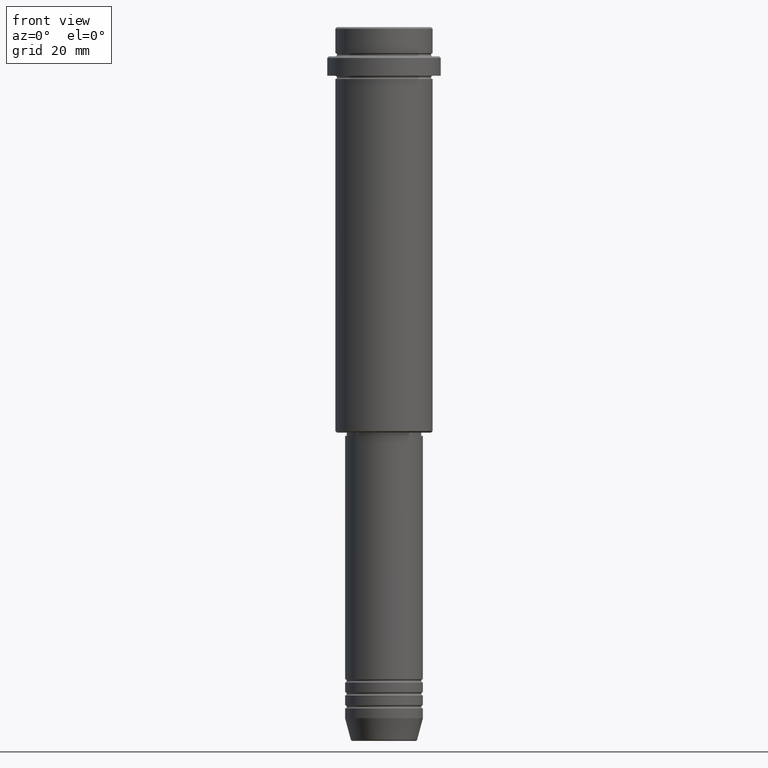
[diagram: clean part render]
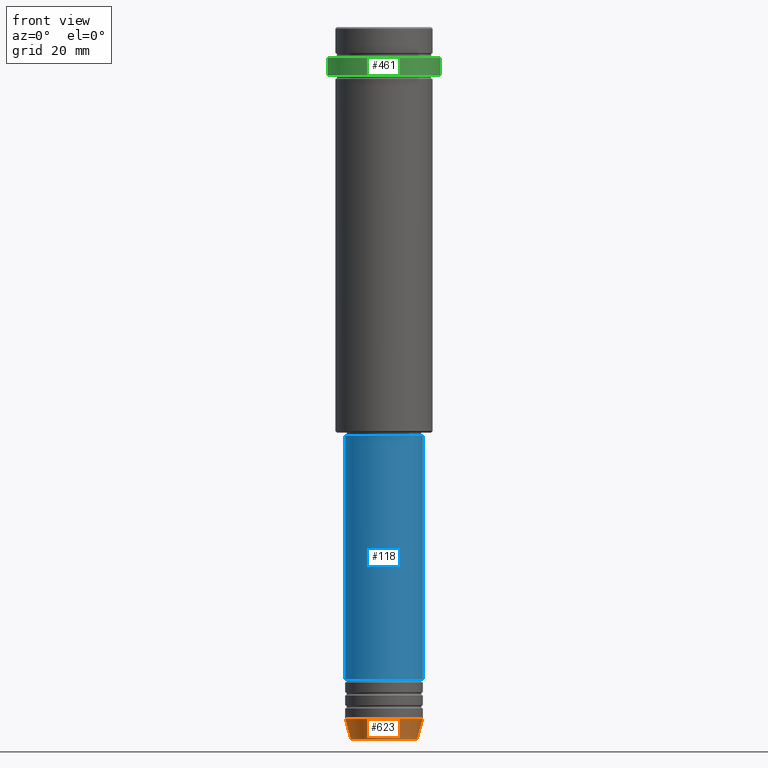
[diagram: same view with three faces highlighted in distinct colors, each labeled with its STEP entity id]
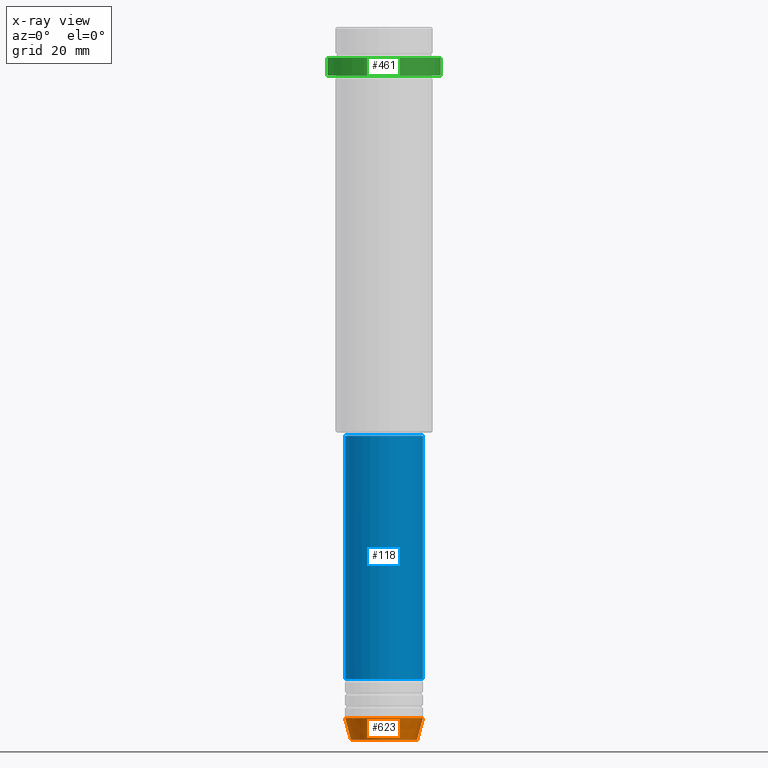
[diagram: x-ray of the same camera — body ghosted, the three highlighted faces saturated]
A machine part, front view with three faces highlighted in distinct colors.
The next image is the same camera in x-ray (body ghosted, the three faces saturated) — at least one of them is partly hidden behind the body in this view.
Their STEP definitions:

[orange] entity #623 — the highlighted conical surface has half-angle 15 deg.
#35 = VERTEX_POINT ( 'NONE', #320 ) ;
#95 = AXIS2_PLACEMENT_3D ( 'NONE', #688, #578, #375 ) ;
#104 = DIRECTION ( 'NONE',  ( 0.2588190451025205174, 0.000000000000000000, 0.9659258262890684232 ) ) ;
#116 = FACE_OUTER_BOUND ( 'NONE', #155, .T. ) ;
#148 = ORIENTED_EDGE ( 'NONE', *, *, #875, .T. ) ;
#155 = EDGE_LOOP ( 'NONE', ( #956, #1179, #148, #1225 ) ) ;
#167 = AXIS2_PLACEMENT_3D ( 'NONE', #613, #1273, #1031 ) ;
#191 = CARTESIAN_POINT ( 'NONE',  ( -12.00000000000000000, 1.469576158976823947E-15, -213.0000000000000284 ) ) ;
#314 = AXIS2_PLACEMENT_3D ( 'NONE', #541, #440, #871 ) ;
#320 = CARTESIAN_POINT ( 'NONE',  ( -10.22365507213720015, 1.360806402472383139E-15, -219.6294095225512706 ) ) ;
#348 = CARTESIAN_POINT ( 'NONE',  ( 12.00000000000000000, 0.000000000000000000, -213.0000000000000284 ) ) ;
#375 = DIRECTION ( 'NONE',  ( 1.000000000000000000, 0.000000000000000000, 0.000000000000000000 ) ) ;
#440 = DIRECTION ( 'NONE',  ( -0.000000000000000000, -0.000000000000000000, 1.000000000000000000 ) ) ;
#460 = VERTEX_POINT ( 'NONE', #191 ) ;
#487 = CARTESIAN_POINT ( 'NONE',  ( 10.22365507213720015, 0.000000000000000000, -219.6294095225512706 ) ) ;
#541 = CARTESIAN_POINT ( 'NONE',  ( 0.000000000000000000, 0.000000000000000000, -213.0000000000000284 ) ) ;
#578 = DIRECTION ( 'NONE',  ( -0.000000000000000000, -0.000000000000000000, 1.000000000000000000 ) ) ;
#613 = CARTESIAN_POINT ( 'NONE',  ( 0.000000000000000000, 0.000000000000000000, -219.6294095225512706 ) ) ;
#623 = ADVANCED_FACE ( 'NONE', ( #116 ), #1066, .T. ) ;
#638 = LINE ( 'NONE', #1290, #767 ) ;
#688 = CARTESIAN_POINT ( 'NONE',  ( 0.000000000000000000, 0.000000000000000000, -213.0000000000000284 ) ) ;
#731 = LINE ( 'NONE', #1358, #1392 ) ;
#767 = VECTOR ( 'NONE', #104, 1000.000000000000114 ) ;
#871 = DIRECTION ( 'NONE',  ( 1.000000000000000000, 0.000000000000000000, 0.000000000000000000 ) ) ;
#875 = EDGE_CURVE ( 'NONE', #1247, #1407, #638, .T. ) ;
#956 = ORIENTED_EDGE ( 'NONE', *, *, #1252, .F. ) ;
#996 = CIRCLE ( 'NONE', #95, 12.00000000000000000 ) ;
#1031 = DIRECTION ( 'NONE',  ( 1.000000000000000000, 0.000000000000000000, 0.000000000000000000 ) ) ;
#1066 = CONICAL_SURFACE ( 'NONE', #314, 12.00000000000000000, 0.2617993877991491303 ) ;
#1179 = ORIENTED_EDGE ( 'NONE', *, *, #1308, .T. ) ;
#1225 = ORIENTED_EDGE ( 'NONE', *, *, #1377, .F. ) ;
#1247 = VERTEX_POINT ( 'NONE', #487 ) ;
#1252 = EDGE_CURVE ( 'NONE', #35, #460, #731, .T. ) ;
#1270 = DIRECTION ( 'NONE',  ( -0.2588190451025205174, 3.169619151431761243E-17, 0.9659258262890684232 ) ) ;
#1273 = DIRECTION ( 'NONE',  ( -0.000000000000000000, -0.000000000000000000, 1.000000000000000000 ) ) ;
#1290 = CARTESIAN_POINT ( 'NONE',  ( 12.00000000000000000, 0.000000000000000000, -213.0000000000000284 ) ) ;
#1296 = CIRCLE ( 'NONE', #167, 10.22365507213720015 ) ;
#1308 = EDGE_CURVE ( 'NONE', #35, #1247, #1296, .T. ) ;
#1358 = CARTESIAN_POINT ( 'NONE',  ( -12.00000000000000000, 1.469576158976823947E-15, -213.0000000000000284 ) ) ;
#1377 = EDGE_CURVE ( 'NONE', #460, #1407, #996, .T. ) ;
#1392 = VECTOR ( 'NONE', #1270, 1000.000000000000114 ) ;
#1407 = VERTEX_POINT ( 'NONE', #348 ) ;

[blue] entity #118 — the highlighted cylindrical surface (partial cylindrical patch) has radius 12 mm, axis along (-0, -0, 1).
#10 = LINE ( 'NONE', #331, #160 ) ;
#99 = EDGE_CURVE ( 'NONE', #1382, #898, #629, .T. ) ;
#118 = ADVANCED_FACE ( 'NONE', ( #1303 ), #308, .T. ) ;
#132 = CARTESIAN_POINT ( 'NONE',  ( 0.000000000000000000, 0.000000000000000000, -126.0000000000000000 ) ) ;
#160 = VECTOR ( 'NONE', #538, 1000.000000000000000 ) ;
#169 = ORIENTED_EDGE ( 'NONE', *, *, #99, .T. ) ;
#245 = EDGE_CURVE ( 'NONE', #1382, #1153, #10, .T. ) ;
#246 = CARTESIAN_POINT ( 'NONE',  ( -11.99999999999999822, 1.469576158976823750E-15, -126.0000000000000000 ) ) ;
#308 = CYLINDRICAL_SURFACE ( 'NONE', #854, 12.00000000000000000 ) ;
#311 = DIRECTION ( 'NONE',  ( -0.000000000000000000, -0.000000000000000000, 1.000000000000000000 ) ) ;
#331 = CARTESIAN_POINT ( 'NONE',  ( -12.00000000000000000, 1.469576158976823947E-15, 0.000000000000000000 ) ) ;
#415 = DIRECTION ( 'NONE',  ( 1.000000000000000000, 0.000000000000000000, 0.000000000000000000 ) ) ;
#480 = CIRCLE ( 'NONE', #567, 11.99999999999999822 ) ;
#503 = VERTEX_POINT ( 'NONE', #1003 ) ;
#526 = EDGE_CURVE ( 'NONE', #898, #503, #1106, .T. ) ;
#538 = DIRECTION ( 'NONE',  ( -0.000000000000000000, -0.000000000000000000, 1.000000000000000000 ) ) ;
#567 = AXIS2_PLACEMENT_3D ( 'NONE', #132, #1336, #1359 ) ;
#592 = ORIENTED_EDGE ( 'NONE', *, *, #1399, .F. ) ;
#629 = CIRCLE ( 'NONE', #1291, 12.00000000000000000 ) ;
#670 = CARTESIAN_POINT ( 'NONE',  ( -12.00000000000000000, 1.469576158976823947E-15, -200.9999999999999147 ) ) ;
#719 = ORIENTED_EDGE ( 'NONE', *, *, #526, .T. ) ;
#737 = CARTESIAN_POINT ( 'NONE',  ( 0.000000000000000000, 0.000000000000000000, 0.000000000000000000 ) ) ;
#854 = AXIS2_PLACEMENT_3D ( 'NONE', #737, #311, #1186 ) ;
#856 = VECTOR ( 'NONE', #1210, 1000.000000000000000 ) ;
#879 = CARTESIAN_POINT ( 'NONE',  ( 12.00000000000000000, 0.000000000000000000, 0.000000000000000000 ) ) ;
#898 = VERTEX_POINT ( 'NONE', #1124 ) ;
#918 = ORIENTED_EDGE ( 'NONE', *, *, #245, .F. ) ;
#1003 = CARTESIAN_POINT ( 'NONE',  ( 11.99999999999999822, 0.000000000000000000, -126.0000000000000000 ) ) ;
#1011 = EDGE_LOOP ( 'NONE', ( #918, #169, #719, #592 ) ) ;
#1106 = LINE ( 'NONE', #879, #856 ) ;
#1124 = CARTESIAN_POINT ( 'NONE',  ( 12.00000000000000000, 0.000000000000000000, -200.9999999999999147 ) ) ;
#1153 = VERTEX_POINT ( 'NONE', #246 ) ;
#1186 = DIRECTION ( 'NONE',  ( 1.000000000000000000, 0.000000000000000000, 0.000000000000000000 ) ) ;
#1210 = DIRECTION ( 'NONE',  ( -0.000000000000000000, -0.000000000000000000, 1.000000000000000000 ) ) ;
#1291 = AXIS2_PLACEMENT_3D ( 'NONE', #1400, #1395, #415 ) ;
#1303 = FACE_OUTER_BOUND ( 'NONE', #1011, .T. ) ;
#1336 = DIRECTION ( 'NONE',  ( -0.000000000000000000, -0.000000000000000000, 1.000000000000000000 ) ) ;
#1359 = DIRECTION ( 'NONE',  ( 1.000000000000000000, 0.000000000000000000, 0.000000000000000000 ) ) ;
#1382 = VERTEX_POINT ( 'NONE', #670 ) ;
#1395 = DIRECTION ( 'NONE',  ( -0.000000000000000000, -0.000000000000000000, 1.000000000000000000 ) ) ;
#1399 = EDGE_CURVE ( 'NONE', #1153, #503, #480, .T. ) ;
#1400 = CARTESIAN_POINT ( 'NONE',  ( 0.000000000000000000, 0.000000000000000000, -200.9999999999999147 ) ) ;

[green] entity #461 — the highlighted cylindrical surface (partial cylindrical patch) has radius 17.5 mm, axis along (-0, -0, 1).
#81 = DIRECTION ( 'NONE',  ( 1.000000000000000000, 0.000000000000000000, 0.000000000000000000 ) ) ;
#82 = CARTESIAN_POINT ( 'NONE',  ( 17.50000000000000000, 0.000000000000000000, -9.500000000000028422 ) ) ;
#186 = CIRCLE ( 'NONE', #818, 17.50000000000000000 ) ;
#204 = ORIENTED_EDGE ( 'NONE', *, *, #999, .T. ) ;
#216 = DIRECTION ( 'NONE',  ( -0.000000000000000000, -0.000000000000000000, 1.000000000000000000 ) ) ;
#223 = VERTEX_POINT ( 'NONE', #1095 ) ;
#232 = DIRECTION ( 'NONE',  ( 1.000000000000000000, 0.000000000000000000, 0.000000000000000000 ) ) ;
#240 = CARTESIAN_POINT ( 'NONE',  ( 0.000000000000000000, 0.000000000000000000, -9.500000000000028422 ) ) ;
#248 = DIRECTION ( 'NONE',  ( 0.000000000000000000, 0.000000000000000000, -1.000000000000000000 ) ) ;
#277 = VECTOR ( 'NONE', #216, 1000.000000000000000 ) ;
#294 = CYLINDRICAL_SURFACE ( 'NONE', #992, 17.50000000000000000 ) ;
#386 = ORIENTED_EDGE ( 'NONE', *, *, #1027, .T. ) ;
#396 = EDGE_LOOP ( 'NONE', ( #1074, #507, #204, #386 ) ) ;
#461 = ADVANCED_FACE ( 'NONE', ( #722 ), #294, .T. ) ;
#507 = ORIENTED_EDGE ( 'NONE', *, *, #709, .T. ) ;
#579 = DIRECTION ( 'NONE',  ( -0.000000000000000000, -0.000000000000000000, 1.000000000000000000 ) ) ;
#614 = CARTESIAN_POINT ( 'NONE',  ( 0.000000000000000000, 0.000000000000000000, 0.000000000000000000 ) ) ;
#648 = CARTESIAN_POINT ( 'NONE',  ( 17.50000000000000000, 0.000000000000000000, 0.000000000000000000 ) ) ;
#662 = EDGE_CURVE ( 'NONE', #983, #223, #1119, .T. ) ;
#694 = CARTESIAN_POINT ( 'NONE',  ( -17.50000000000000000, 2.143131898507868248E-15, 0.000000000000000000 ) ) ;
#709 = EDGE_CURVE ( 'NONE', #983, #735, #1255, .T. ) ;
#722 = FACE_OUTER_BOUND ( 'NONE', #396, .T. ) ;
#725 = VECTOR ( 'NONE', #1150, 1000.000000000000000 ) ;
#735 = VERTEX_POINT ( 'NONE', #798 ) ;
#798 = CARTESIAN_POINT ( 'NONE',  ( 17.50000000000000000, 0.000000000000000000, -15.00000000000000178 ) ) ;
#818 = AXIS2_PLACEMENT_3D ( 'NONE', #240, #248, #232 ) ;
#896 = CARTESIAN_POINT ( 'NONE',  ( -17.50000000000000000, 2.143131898507868248E-15, -15.00000000000000178 ) ) ;
#972 = LINE ( 'NONE', #648, #277 ) ;
#983 = VERTEX_POINT ( 'NONE', #896 ) ;
#992 = AXIS2_PLACEMENT_3D ( 'NONE', #614, #1054, #81 ) ;
#999 = EDGE_CURVE ( 'NONE', #735, #1115, #972, .T. ) ;
#1007 = DIRECTION ( 'NONE',  ( 1.000000000000000000, 0.000000000000000000, 0.000000000000000000 ) ) ;
#1027 = EDGE_CURVE ( 'NONE', #1115, #223, #186, .T. ) ;
#1054 = DIRECTION ( 'NONE',  ( -0.000000000000000000, -0.000000000000000000, 1.000000000000000000 ) ) ;
#1074 = ORIENTED_EDGE ( 'NONE', *, *, #662, .F. ) ;
#1095 = CARTESIAN_POINT ( 'NONE',  ( -17.50000000000000000, 2.143131898507868248E-15, -9.500000000000028422 ) ) ;
#1115 = VERTEX_POINT ( 'NONE', #82 ) ;
#1119 = LINE ( 'NONE', #694, #725 ) ;
#1126 = CARTESIAN_POINT ( 'NONE',  ( 0.000000000000000000, 0.000000000000000000, -15.00000000000000178 ) ) ;
#1150 = DIRECTION ( 'NONE',  ( -0.000000000000000000, -0.000000000000000000, 1.000000000000000000 ) ) ;
#1255 = CIRCLE ( 'NONE', #1348, 17.50000000000000000 ) ;
#1348 = AXIS2_PLACEMENT_3D ( 'NONE', #1126, #579, #1007 ) ;